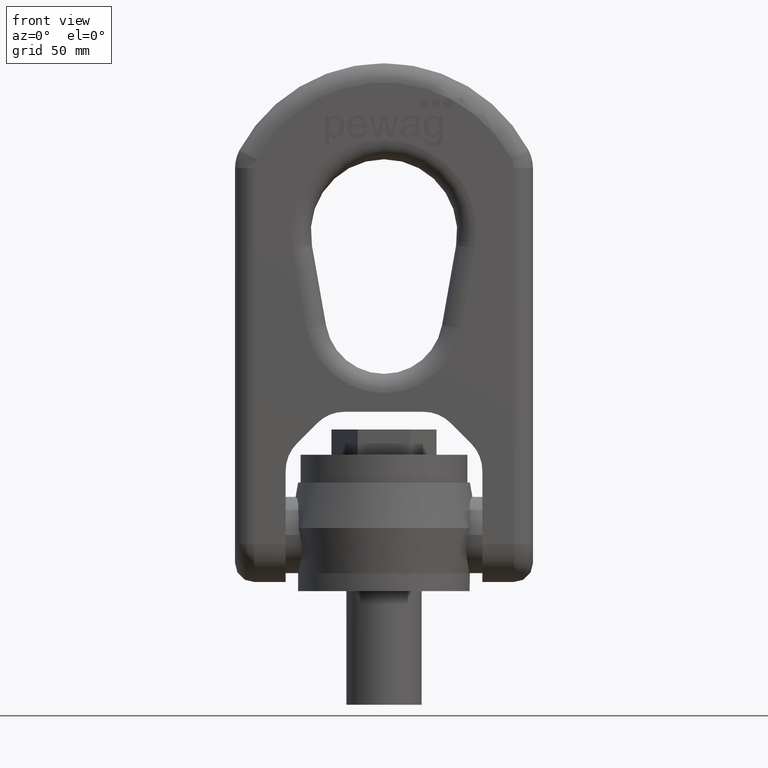
[diagram: clean part render]
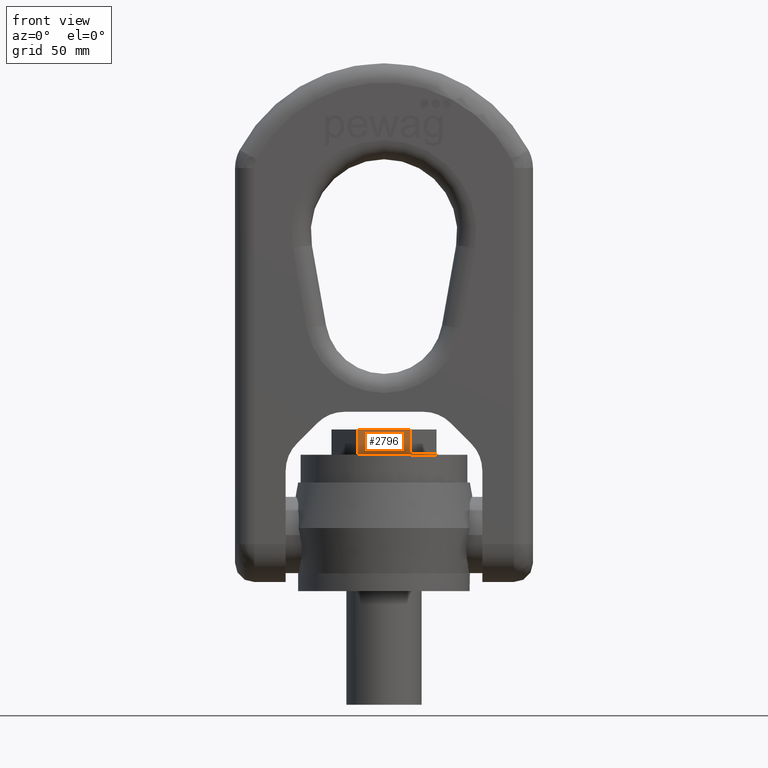
[diagram: same view with one face highlighted and labeled with its STEP entity id]
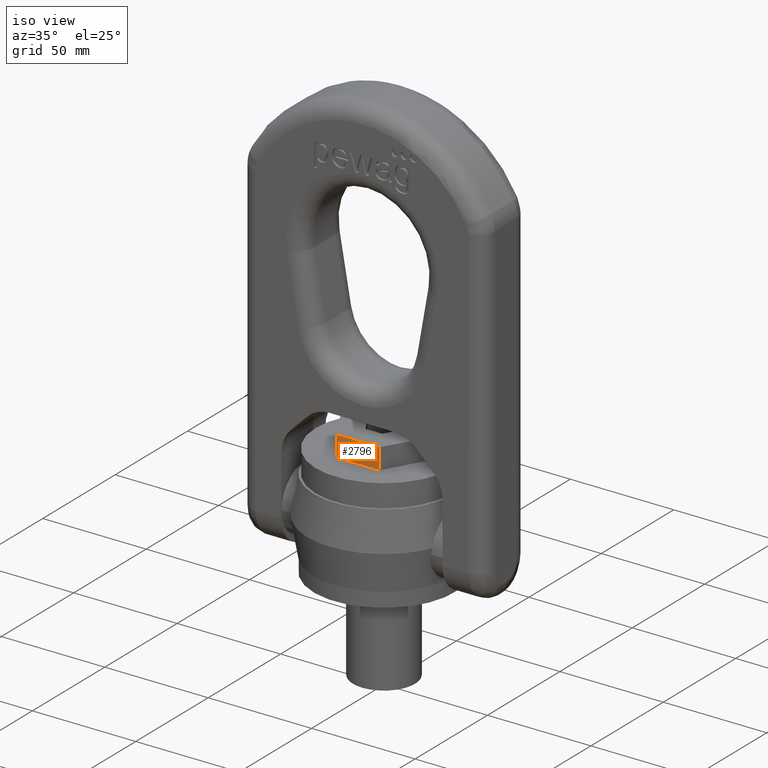
[diagram: same view with one face highlighted and labeled with its STEP entity id]
A machine part, front view. The second image highlights one B-rep face of the part: STEP entity #2796.
A second angle (iso view) of the same face is appended — the face is thin or edge-on in the first view.
In plain terms, the highlighted planar face has unit normal (0, 1, 0).
Its self-contained STEP definition (entity closure, byte-faithful):
#1734=LINE('',#6972,#2042);
#1735=LINE('',#6974,#2043);
#1738=LINE('',#6980,#2046);
#1739=LINE('',#6982,#2047);
#2042=VECTOR('',#6103,1.);
#2043=VECTOR('',#6106,1.);
#2046=VECTOR('',#6111,1.);
#2047=VECTOR('',#6112,1.);
#2439=FACE_OUTER_BOUND('',#3155,.T.);
#2670=PLANE('',#5846);
#2796=ADVANCED_FACE('',(#2439),#2670,.F.);
#3155=EDGE_LOOP('',(#3459,#3460,#3461,#3462));
#3459=ORIENTED_EDGE('',*,*,#5130,.T.);
#3460=ORIENTED_EDGE('',*,*,#5134,.F.);
#3461=ORIENTED_EDGE('',*,*,#5135,.F.);
#3462=ORIENTED_EDGE('',*,*,#5131,.T.);
#4706=VERTEX_POINT('',#6963);
#4710=VERTEX_POINT('',#6971);
#4711=VERTEX_POINT('',#6975);
#4713=VERTEX_POINT('',#6981);
#5130=EDGE_CURVE('',#4706,#4710,#1734,.T.);
#5131=EDGE_CURVE('',#4711,#4706,#1735,.T.);
#5134=EDGE_CURVE('',#4713,#4710,#1738,.T.);
#5135=EDGE_CURVE('',#4711,#4713,#1739,.T.);
#5846=AXIS2_PLACEMENT_3D('',#6983,#6113,#6114);
#6103=DIRECTION('',(1.,0.,0.));
#6106=DIRECTION('',(0.,0.,-1.));
#6111=DIRECTION('',(0.,0.,-1.));
#6112=DIRECTION('',(1.,0.,0.));
#6113=DIRECTION('',(0.,1.,0.));
#6114=DIRECTION('',(0.,0.,1.));
#6963=CARTESIAN_POINT('',(-10.3923048454133,-18.,54.));
#6971=CARTESIAN_POINT('',(10.3923048454133,-18.,54.));
#6972=CARTESIAN_POINT('',(-10.3923048454133,-18.,54.));
#6974=CARTESIAN_POINT('',(-10.3923048454133,-18.,64.));
#6975=CARTESIAN_POINT('',(-10.3923048454133,-18.,64.));
#6980=CARTESIAN_POINT('',(10.3923048454133,-18.,64.));
#6981=CARTESIAN_POINT('',(10.3923048454133,-18.,64.));
#6982=CARTESIAN_POINT('',(-10.3923048454133,-18.,64.));
#6983=CARTESIAN_POINT('',(-10.3923048454133,-18.,64.));